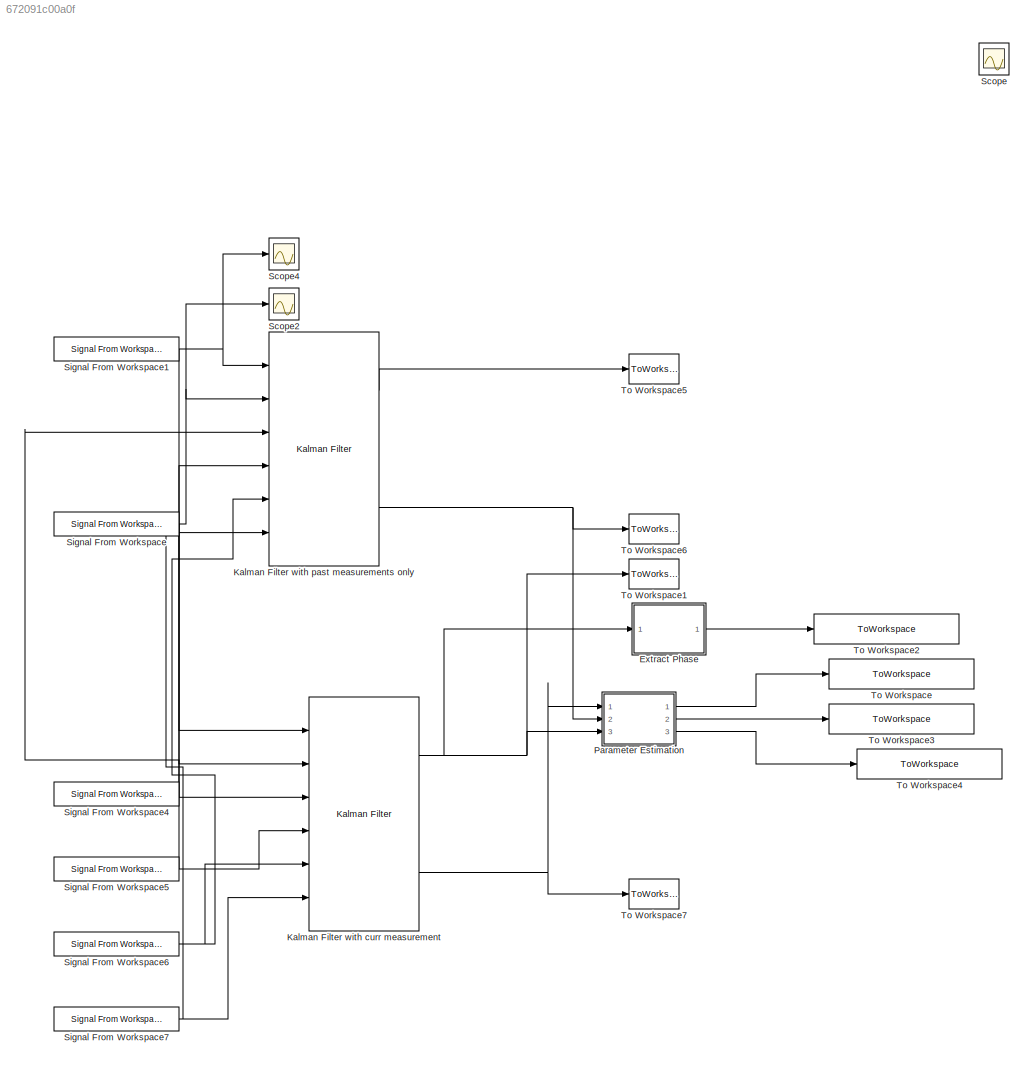
MODEL slx_672091c00a0f
KIND model
CONFIG AbsTol = auto
CONFIG EnableMultiTasking = off
CONFIG FixedStep = 0.01
CONFIG MaxStep = auto
CONFIG MinStep = auto
CONFIG RelTol = 1e-3
CONFIG SampleTimeConstraint = Unconstrained
CONFIG Solver = VariableStepAuto
CONFIG SolverName = VariableStepAuto
CONFIG StartTime = 0.0
CONFIG StopTime = model.sim_dur
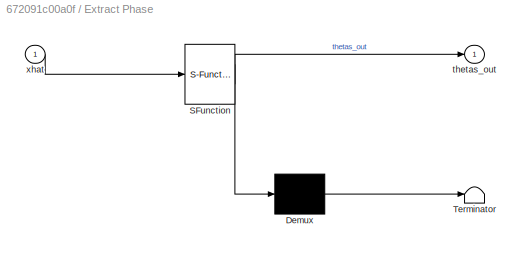
BLOCK [SubSystem] Extract Phase
  Commented = on
  ErrorFcn = Stateflow.Translate.translate
  PermitHierarchicalResolution = ExplicitOnly
  Ports = [1, 1]
  RequestExecContextInheritance = off
  SFBlockType = MATLAB Function
  SystemSampleTime = model.Ts
  TreatAsAtomicUnit = on
BLOCK [Demux] Extract Phase/ Demux 
  Outputs = 1
  Ports = [1, 1]
BLOCK [S-Function] Extract Phase/ SFunction 
  EnableBusSupport = on
  FunctionName = sf_sfun
  PortCounts = [1 2]
  Ports = [1, 2]
  SFcnIsStateOwnerBlock = off
  SFunctionDeploymentMode = off
  Tag = Stateflow S-Function 2
BLOCK [Terminator] Extract Phase/ Terminator 
BLOCK [Outport] Extract Phase/thetas_out
  IconDisplay = Port number
BLOCK [Inport] Extract Phase/xhat
  IconDisplay = Port number
BLOCK [Reference] Kalman Filter with curr measurement  REF=ctrlSharedLib/Kalman Filter
  Ports = [6, 3]
  SourceBlock = ctrlSharedLib/Kalman Filter
  SourceProductBaseCode = CT
  SourceProductName = Control System Toolbox
  SourceType = ctrlKalmanFilter
BLOCK [Reference] Kalman Filter with past measurements only  REF=ctrlSharedLib/Kalman Filter
  Ports = [6, 3]
  SourceBlock = ctrlSharedLib/Kalman Filter
  SourceProductBaseCode = CT
  SourceProductName = Control System Toolbox
  SourceType = ctrlKalmanFilter
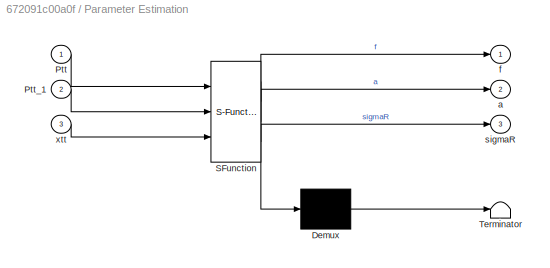
BLOCK [SubSystem] Parameter Estimation
  ErrorFcn = Stateflow.Translate.translate
  PermitHierarchicalResolution = ExplicitOnly
  Ports = [3, 3]
  RequestExecContextInheritance = off
  SFBlockType = MATLAB Function
  SystemSampleTime = model.Ts
  TreatAsAtomicUnit = on
BLOCK [Demux] Parameter Estimation/ Demux 
  Outputs = 1
  Ports = [1, 1]
BLOCK [S-Function] Parameter Estimation/ SFunction 
  EnableBusSupport = on
  FunctionName = sf_sfun
  Parameters = model
  PortCounts = [3 4]
  Ports = [3, 4]
  SFcnIsStateOwnerBlock = off
  SFunctionDeploymentMode = off
  Tag = Stateflow S-Function 1
BLOCK [Terminator] Parameter Estimation/ Terminator 
BLOCK [Inport] Parameter Estimation/Ptt
  IconDisplay = Port number
BLOCK [Inport] Parameter Estimation/Ptt_1
  IconDisplay = Port number
  Port = 2
BLOCK [Outport] Parameter Estimation/a
  IconDisplay = Port number
  Port = 2
BLOCK [Outport] Parameter Estimation/f
  IconDisplay = Port number
BLOCK [Outport] Parameter Estimation/sigmaR
  IconDisplay = Port number
  Port = 3
BLOCK [Inport] Parameter Estimation/xtt
  IconDisplay = Port number
  Port = 3
BLOCK [Scope] Scope
  Floating = off
  IOType = viewer
  NumInputPorts = 1
  Ports = []
  ScopeSpecificationString = Simulink.scopes.TimeScopeBlockCfg('CurrentConfiguration', extmgr.ConfigurationSet(extmgr.Configuration('Core','General UI',true,'FigureColor',[0.941176470588235 0.941176470588235 0.941176470588235]),extmgr.Configuration('Core','Source UI',true),extmgr.Configuration('Sources','WiredSimulink',true),extmgr.Configuration('Visuals','Time Domain',true,'SerializedDisplays',{struct('MinYLimReal','-0.28512...<+2421ch>
BLOCK [Scope] Scope2
  Floating = off
  NumInputPorts = 1
  Ports = [1]
  ScopeSpecificationString = Simulink.scopes.TimeScopeBlockCfg('CurrentConfiguration', extmgr.ConfigurationSet(extmgr.Configuration('Core','General UI',true),extmgr.Configuration('Core','Source UI',true),extmgr.Configuration('Sources','WiredSimulink',true,'DataLoggingVariableName','ScopeData2'),extmgr.Configuration('Visuals','Time Domain',true,'SerializedDisplays',{struct('MinYLimReal','-0.48787','MaxYLimReal','0.48787','YLab...<+1451ch>
BLOCK [Scope] Scope4
  Floating = off
  NumInputPorts = 1
  Ports = [1]
  ScopeSpecificationString = Simulink.scopes.TimeScopeBlockCfg('CurrentConfiguration', extmgr.ConfigurationSet(extmgr.Configuration('Core','General UI',true),extmgr.Configuration('Core','Source UI',true),extmgr.Configuration('Sources','WiredSimulink',true,'DataLoggingVariableName','ScopeData4'),extmgr.Configuration('Visuals','Time Domain',true,'SerializedDisplays',{struct('MinYLimReal','-1.00000','MaxYLimReal','1.00000','YLab...<+1439ch>
BLOCK [Reference] Signal From Workspace  REF=dspsrcs4/Signal From
Workspace
  Ports = [0, 1]
  SourceBlock = dspsrcs4/Signal From\nWorkspace
  SourceProductBaseCode = DS
  SourceProductName = DSP System Toolbox
  SourceType = Signal From Workspace
BLOCK [Reference] Signal From Workspace1  REF=dspsrcs4/Signal From
Workspace
  Ports = [0, 1]
  SourceBlock = dspsrcs4/Signal From\nWorkspace
  SourceProductBaseCode = DS
  SourceProductName = DSP System Toolbox
  SourceType = Signal From Workspace
BLOCK [Reference] Signal From Workspace4  REF=dspsrcs4/Signal From
Workspace
  Ports = [0, 1]
  SourceBlock = dspsrcs4/Signal From\nWorkspace
  SourceProductBaseCode = DS
  SourceProductName = DSP System Toolbox
  SourceType = Signal From Workspace
BLOCK [Reference] Signal From Workspace5  REF=dspsrcs4/Signal From
Workspace
  Ports = [0, 1]
  SourceBlock = dspsrcs4/Signal From\nWorkspace
  SourceProductBaseCode = DS
  SourceProductName = DSP System Toolbox
  SourceType = Signal From Workspace
BLOCK [Reference] Signal From Workspace6  REF=dspsrcs4/Signal From
Workspace
  Ports = [0, 1]
  SourceBlock = dspsrcs4/Signal From\nWorkspace
  SourceProductBaseCode = DS
  SourceProductName = DSP System Toolbox
  SourceType = Signal From Workspace
BLOCK [Reference] Signal From Workspace7  REF=dspsrcs4/Signal From
Workspace
  Ports = [0, 1]
  SourceBlock = dspsrcs4/Signal From\nWorkspace
  SourceProductBaseCode = DS
  SourceProductName = DSP System Toolbox
  SourceType = Signal From Workspace
BLOCK [ToWorkspace] To Workspace
  MaxDataPoints = 1
  Ports = [1]
  SampleTime = model.Ts
  Save2DSignal = 2-D array (concatenate along first dimension)
  VariableName = f_calculated
BLOCK [ToWorkspace] To Workspace1
  MaxDataPoints = inf
  Ports = [1]
  SampleTime = model.Ts
  Save2DSignal = 2-D array (concatenate along first dimension)
  VariableName = xtt
BLOCK [ToWorkspace] To Workspace2
  MaxDataPoints = inf
  Ports = [1]
  SampleTime = model.Ts
  Save2DSignal = 2-D array (concatenate along first dimension)
  VariableName = thetas
BLOCK [ToWorkspace] To Workspace3
  MaxDataPoints = 2
  Ports = [1]
  SampleTime = model.Ts
  Save2DSignal = 2-D array (concatenate along first dimension)
  VariableName = a_calculated
BLOCK [ToWorkspace] To Workspace4
  MaxDataPoints = 1
  Ports = [1]
  SampleTime = model.Ts
  Save2DSignal = 2-D array (concatenate along first dimension)
  VariableName = sigma2_R_calculated
BLOCK [ToWorkspace] To Workspace5
  MaxDataPoints = inf
  Ports = [1]
  SampleTime = model.Ts
  Save2DSignal = 2-D array (concatenate along first dimension)
  VariableName = xtt_1
BLOCK [ToWorkspace] To Workspace6
  MaxDataPoints = inf
  Ports = [1]
  SampleTime = model.Ts
  Save2DSignal = 2-D array (concatenate along first dimension)
  VariableName = Ptt_1
BLOCK [ToWorkspace] To Workspace7
  MaxDataPoints = inf
  Ports = [1]
  SampleTime = model.Ts
  Save2DSignal = 2-D array (concatenate along first dimension)
  VariableName = Ptt
LINE Extract Phase:1 -> To Workspace2:1
NET Kalman Filter with curr measurement:1 -> Extract Phase:1, Parameter Estimation:3, To Workspace1:1
NET Kalman Filter with curr measurement:3 -> Parameter Estimation:1, To Workspace7:1
LINE Kalman Filter with past measurements only:1 -> To Workspace5:1
NET Kalman Filter with past measurements only:3 -> Parameter Estimation:2, To Workspace6:1
LINE Parameter Estimation:1 -> To Workspace:1
LINE Parameter Estimation:2 -> To Workspace3:1
LINE Parameter Estimation:3 -> To Workspace4:1
NET Signal From Workspace1:1 -> Kalman Filter with curr measurement:1, Kalman Filter with past measurements only:1, Scope4:1
NET Signal From Workspace4:1 -> Kalman Filter with curr measurement:3, Kalman Filter with past measurements only:3
NET Signal From Workspace5:1 -> Kalman Filter with curr measurement:4, Kalman Filter with past measurements only:4
NET Signal From Workspace6:1 -> Kalman Filter with curr measurement:5, Kalman Filter with past measurements only:5
NET Signal From Workspace7:1 -> Kalman Filter with curr measurement:6, Kalman Filter with past measurements only:6
NET Signal From Workspace:1 -> Kalman Filter with curr measurement:2, Kalman Filter with past measurements only:2, Scope2:1
note: NET lines group one-source signal fan-out (src -> all destinations, sorted); 1:1 wires keep LINE
CHART Parameter Estimation states=1 transitions=1
  STATE_LABEL 'eML_blk_kernel()'
  STATE_LABEL "SCRIPT:\nfunction [f, a, sigmaR]  = parameter_estimation(Ptt, Ptt_1, xtt, model)\n\n%WARNING!!!!!! To-do: add dimensions_param = model.state_dimensions;\n%Right now, 2 is used as a dimension because Simulink complains when\n%variables are used for matrix dimensions. When the state space is\n%extended for artefact removal, change the 2's to a new value.\n%Warning No2: note the limits imposed on model para...<+3554ch>"
CHART Extract Phase states=1 transitions=1
  STATE_LABEL 'eML_blk_kernel()'
  STATE_LABEL 'SCRIPT:\nfunction thetas_out  = extract_phase(xhat)\nnum_rhythms = length(xhat)/2;\n% thetas_out = zeros(num_rhythms, 1);\n% \n% for j = 1:num_rhythms\n%     Im = xhat(2 * (j-1) + 2);\n%     Re = xhat(2 * (j-1) + 1);\n%     thetas_out(j, 1) = atan2(Im, Re);\n% end\n\nthetas_out = atan2(xhat(2:2:2*num_rhythms), xhat(1:2:2*(num_rhythms-1)+1))'
